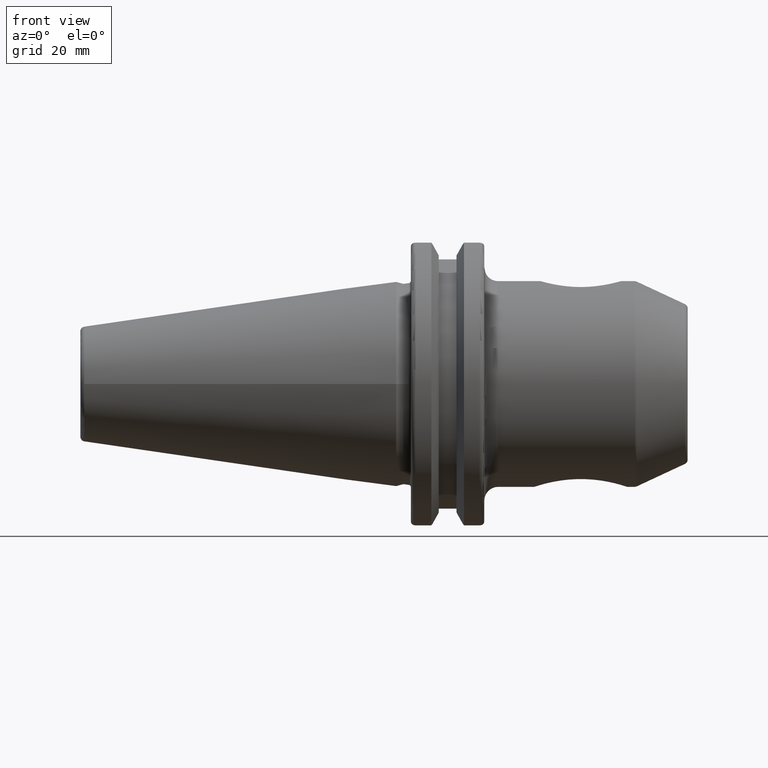
[diagram: clean part render]
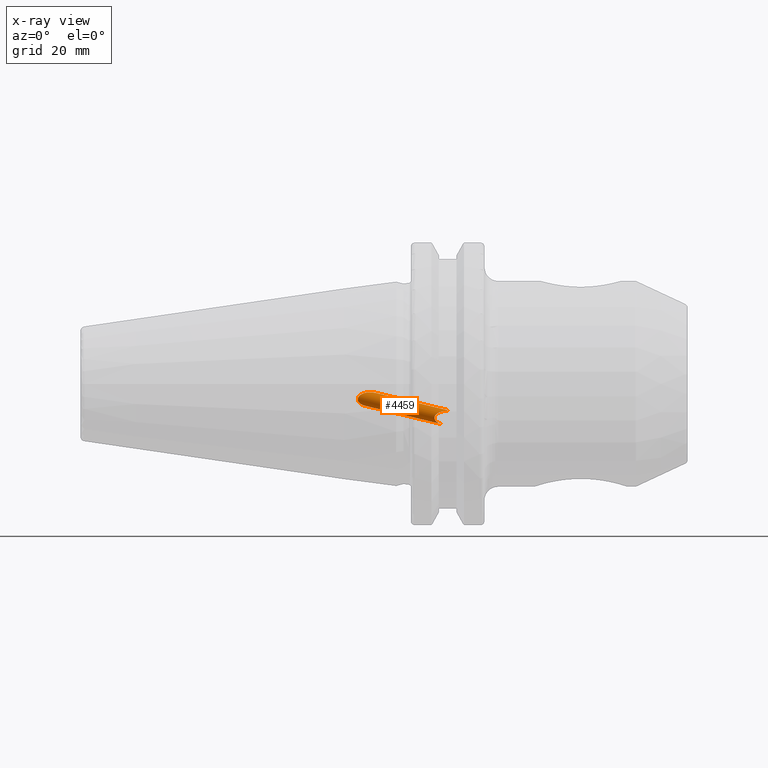
[diagram: x-ray — body ghosted, one internal face saturated and labeled with its STEP entity id]
A machine part, front view, then the same camera in x-ray: the body is ghosted and one INTERNAL B-rep face — a face not visible from any outside direction — is saturated and labeled: STEP entity #4459.
In plain terms, the highlighted cylindrical surface (edge-blend (fillet) strip) has radius 1.621 mm, axis along (0.8192, -0.539, -0.1962).
Its self-contained STEP definition (entity closure, byte-faithful):
#2=CARTESIAN_POINT('',(-4.491304263268E0,-9.633589626049E0,-1.929916038810E0));
#25=CARTESIAN_POINT('',(-6.786389672225E0,-8.620283917806E0,-4.713950591212E0));
#666=CARTESIAN_POINT('',(1.11125E1,-2.070340030120E1,-5.810389288551E0));
#667=CARTESIAN_POINT('',(1.097763274623E1,-2.070340030120E1,-5.810389288551E0));
#668=CARTESIAN_POINT('',(1.071194043673E1,-2.069963851116E1,-5.820703051408E0));
#669=CARTESIAN_POINT('',(1.032500316052E1,-2.068329278443E1,-5.865659345074E0));
#670=CARTESIAN_POINT('',(1.008248862519E1,-2.066588317324E1,-5.913466750452E0));
#671=CARTESIAN_POINT('',(9.964957295521E0,-2.065563850299E1,-5.941613750643E0));
#677=CARTESIAN_POINT('',(9.964957295521E0,-2.065563850299E1,-5.941613750643E0));
#678=CARTESIAN_POINT('',(9.822595187948E0,-2.064322944701E1,-5.975707351731E0));
#679=CARTESIAN_POINT('',(9.557884788464E0,-2.061461243695E1,-6.054331940684E0));
#680=CARTESIAN_POINT('',(9.223964955797E0,-2.056402146550E1,-6.193329492376E0));
#681=CARTESIAN_POINT('',(8.947211964229E0,-2.050796597224E1,-6.347340694337E0));
#682=CARTESIAN_POINT('',(8.723826287145E0,-2.044818415884E1,-6.511589876769E0));
#683=CARTESIAN_POINT('',(8.552042447527E0,-2.038690519554E1,-6.679952444725E0));
#684=CARTESIAN_POINT('',(8.427147466785E0,-2.032569433429E1,-6.848127903832E0));
#685=CARTESIAN_POINT('',(8.343840460791E0,-2.026557062316E1,-7.013316442515E0));
#686=CARTESIAN_POINT('',(8.296617890104E0,-2.020703234003E1,-7.174149053597E0));
#687=CARTESIAN_POINT('',(8.281234337428E0,-2.014870768693E1,-7.334394720992E0));
#688=CARTESIAN_POINT('',(8.296682369350E0,-2.009082921843E1,-7.493414506279E0));
#689=CARTESIAN_POINT('',(8.344429339526E0,-2.003182220332E1,-7.655534947880E0));
#690=CARTESIAN_POINT('',(8.427790407394E0,-1.997191945046E1,-7.820116408708E0));
#691=CARTESIAN_POINT('',(8.553048106803E0,-1.991064991236E1,-7.988453081139E0));
#692=CARTESIAN_POINT('',(8.724681548243E0,-1.984953218746E1,-8.156372650238E0));
#693=CARTESIAN_POINT('',(8.948307799510E0,-1.978975037646E1,-8.320621826068E0));
#694=CARTESIAN_POINT('',(9.224941235538E0,-1.973378618315E1,-8.474382183461E0));
#695=CARTESIAN_POINT('',(9.558525158733E0,-1.968328378470E1,-8.613136382838E0));
#696=CARTESIAN_POINT('',(9.822836697968E0,-1.965472079939E1,-8.691612540005E0));
#697=CARTESIAN_POINT('',(9.964957295521E0,-1.964233279475E1,-8.725648303046E0));
#1973=CARTESIAN_POINT('',(-6.786389672225E0,-8.620283917806E0,
-4.713950591212E0));
#1974=CARTESIAN_POINT('',(-6.900995812718E0,-8.635292850502E0,
-4.686504130193E0));
#1975=CARTESIAN_POINT('',(-7.126227406499E0,-8.670380573794E0,
-4.621776033388E0));
#1976=CARTESIAN_POINT('',(-7.452340649049E0,-8.740945611487E0,
-4.487317948605E0));
#1977=CARTESIAN_POINT('',(-7.744417326056E0,-8.826518067512E0,
-4.317229169061E0));
#1978=CARTESIAN_POINT('',(-8.005475149746E0,-8.931455813141E0,
-4.096885592669E0));
#1979=CARTESIAN_POINT('',(-8.208456750477E0,-9.054122607009E0,
-3.819696349148E0));
#1980=CARTESIAN_POINT('',(-8.319378569620E0,-9.188534333810E0,
-3.485855178579E0));
#1981=CARTESIAN_POINT('',(-8.297396689688E0,-9.324498635979E0,
-3.105074797685E0));
#1982=CARTESIAN_POINT('',(-8.110950468811E0,-9.444492126211E0,
-2.717040562165E0));
#1983=CARTESIAN_POINT('',(-7.770252204730E0,-9.536670932468E0,
-2.370279659478E0));
#1984=CARTESIAN_POINT('',(-7.287573111710E0,-9.602353452296E0,
-2.084792359401E0));
#1985=CARTESIAN_POINT('',(-6.681163033237E0,-9.643244858330E0,
-1.883073137305E0));
#1986=CARTESIAN_POINT('',(-5.984964097508E0,-9.661975950367E0,
-1.782397825686E0));
#1987=CARTESIAN_POINT('',(-5.238444907707E0,-9.660325456992E0,
-1.791461979499E0));
#1988=CARTESIAN_POINT('',(-4.739582110340E0,-9.645501133055E0,
-1.870457198102E0));
#1989=CARTESIAN_POINT('',(-4.491304263268E0,-9.633589626049E0,
-1.929916038810E0));
#1991=DIRECTION('',(-8.191520442890E-1,5.389855446958E-1,1.961746949690E-1));
#1992=VECTOR('',#1991,2.044961870575E1);
#1993=CARTESIAN_POINT('',(9.964957295521E0,-1.964233279475E1,
-8.725648303046E0));
#1994=LINE('',#1993,#1992);
#1995=DIRECTION('',(8.191520442890E-1,-5.389855446958E-1,-1.961746949690E-1));
#1996=VECTOR('',#1995,1.904872773261E1);
#1997=CARTESIAN_POINT('',(-4.491304263268E0,-9.633589626049E0,
-1.929916038810E0));
#1998=LINE('',#1997,#1996);
#2007=CARTESIAN_POINT('',(1.11125E1,-1.990057851877E1,-5.666794391302E0));
#2008=CARTESIAN_POINT('',(1.11125E1,-1.998913189693E1,-5.666794391302E0));
#2009=CARTESIAN_POINT('',(1.11125E1,-2.016790845144E1,-5.677349517892E0));
#2010=CARTESIAN_POINT('',(1.11125E1,-2.043843249279E1,-5.725376246031E0));
#2011=CARTESIAN_POINT('',(1.11125E1,-2.061586917120E1,-5.778530562660E0));
#2012=CARTESIAN_POINT('',(1.11125E1,-2.070340030120E1,-5.810389288551E0));
#2054=CARTESIAN_POINT('',(1.11125E1,-1.990057851877E1,-5.666794391302E0));
#2105=VERTEX_POINT('',#666);
#2106=VERTEX_POINT('',#671);
#2107=VERTEX_POINT('',#697);
#2256=VERTEX_POINT('',#2054);
#2454=VERTEX_POINT('',#2);
#2455=VERTEX_POINT('',#25);
#4445=CARTESIAN_POINT('',(2.052595081003E0,-1.418775070878E1,
-5.163918949186E0));
#4446=DIRECTION('',(8.191520442890E-1,-5.389855446958E-1,-1.961746949690E-1));
#4447=DIRECTION('',(2.328994399200E-1,0.E0,9.725008230768E-1));
#4448=AXIS2_PLACEMENT_3D('',#4445,#4446,#4447);
#4449=CYLINDRICAL_SURFACE('',#4448,1.621E0);
#4450=ORIENTED_EDGE('',*,*,#2526,.F.);
#4451=ORIENTED_EDGE('',*,*,#2499,.F.);
#4452=ORIENTED_EDGE('',*,*,#3118,.F.);
#4453=ORIENTED_EDGE('',*,*,#3100,.F.);
#4455=ORIENTED_EDGE('',*,*,#4454,.F.);
#4456=ORIENTED_EDGE('',*,*,#2493,.F.);
#4457=EDGE_LOOP('',(#4450,#4451,#4452,#4453,#4455,#4456));
#4458=FACE_OUTER_BOUND('',#4457,.F.);
#4459=ADVANCED_FACE('',(#4458),#4449,.F.);
#672=B_SPLINE_CURVE_WITH_KNOTS('',3,(#666,#667,#668,#669,#670,#671),
.UNSPECIFIED.,.F.,.F.,(4,1,1,4),(0.E0,3.333333333333E-1,6.666666666667E-1,1.E0),
.UNSPECIFIED.);
#698=B_SPLINE_CURVE_WITH_KNOTS('',3,(#677,#678,#679,#680,#681,#682,#683,#684,
#685,#686,#687,#688,#689,#690,#691,#692,#693,#694,#695,#696,#697),.UNSPECIFIED.,
.F.,.F.,(4,1,1,1,1,1,1,1,1,1,1,1,1,1,1,1,1,1,4),(0.E0,5.555555555556E-2,
1.111111111111E-1,1.666666666667E-1,2.222222222222E-1,2.777777777778E-1,
3.333333333333E-1,3.888888888889E-1,4.444444444444E-1,5.E-1,5.555555555556E-1,
6.111111111111E-1,6.666666666667E-1,7.222222222222E-1,7.777777777778E-1,
8.333333333333E-1,8.888888888889E-1,9.444444444444E-1,1.E0),.UNSPECIFIED.);
#1990=B_SPLINE_CURVE_WITH_KNOTS('',3,(#1973,#1974,#1975,#1976,#1977,#1978,#1979,
#1980,#1981,#1982,#1983,#1984,#1985,#1986,#1987,#1988,#1989),.UNSPECIFIED.,.F.,
.F.,(4,1,1,1,1,1,1,1,1,1,1,1,1,1,4),(0.E0,7.142857142857E-2,1.428571428571E-1,
2.142857142857E-1,2.857142857143E-1,3.571428571429E-1,4.285714285714E-1,5.E-1,
5.714285714286E-1,6.428571428571E-1,7.142857142857E-1,7.857142857143E-1,
8.571428571429E-1,9.285714285714E-1,1.E0),.UNSPECIFIED.);
#2013=B_SPLINE_CURVE_WITH_KNOTS('',3,(#2007,#2008,#2009,#2010,#2011,#2012),
.UNSPECIFIED.,.F.,.F.,(4,1,1,4),(0.E0,3.333333333333E-1,6.666666666667E-1,1.E0),
.UNSPECIFIED.);
#2493=EDGE_CURVE('',#2454,#2256,#1998,.T.);
#2499=EDGE_CURVE('',#2107,#2455,#1994,.T.);
#2526=EDGE_CURVE('',#2455,#2454,#1990,.T.);
#3100=EDGE_CURVE('',#2105,#2106,#672,.T.);
#3118=EDGE_CURVE('',#2106,#2107,#698,.T.);
#4454=EDGE_CURVE('',#2256,#2105,#2013,.T.);